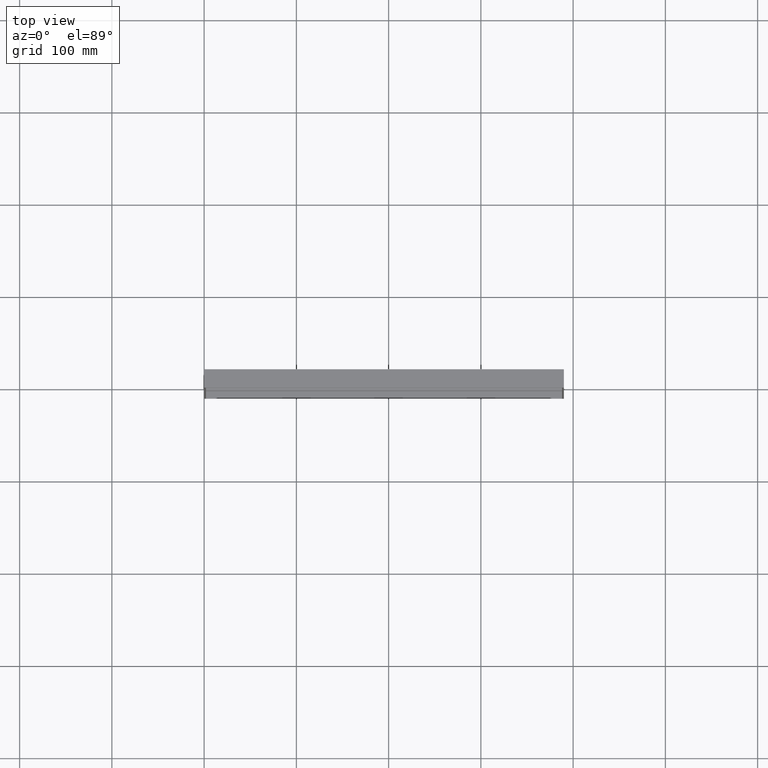
[diagram: clean part render]
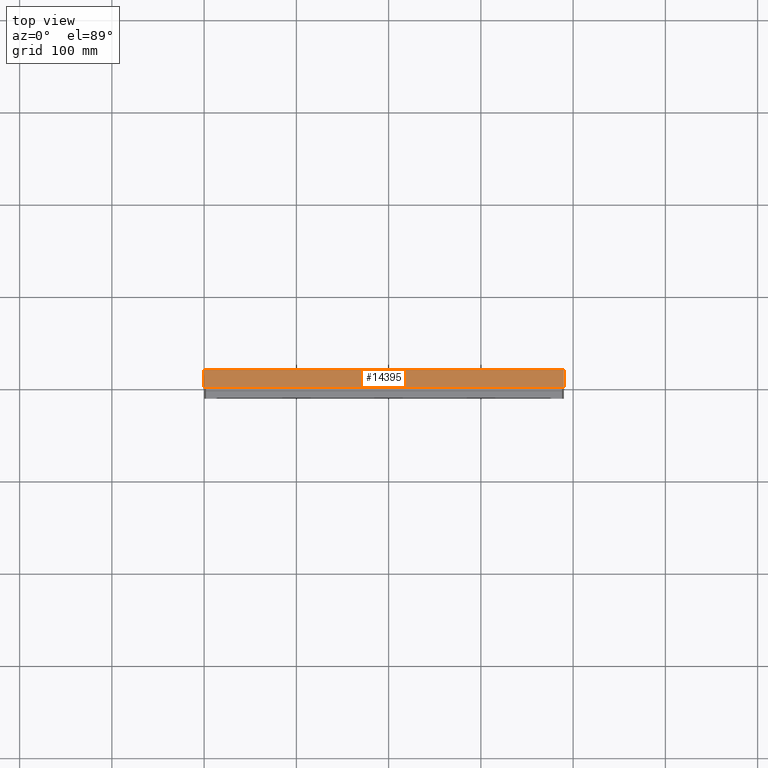
[diagram: same view with one face highlighted and labeled with its STEP entity id]
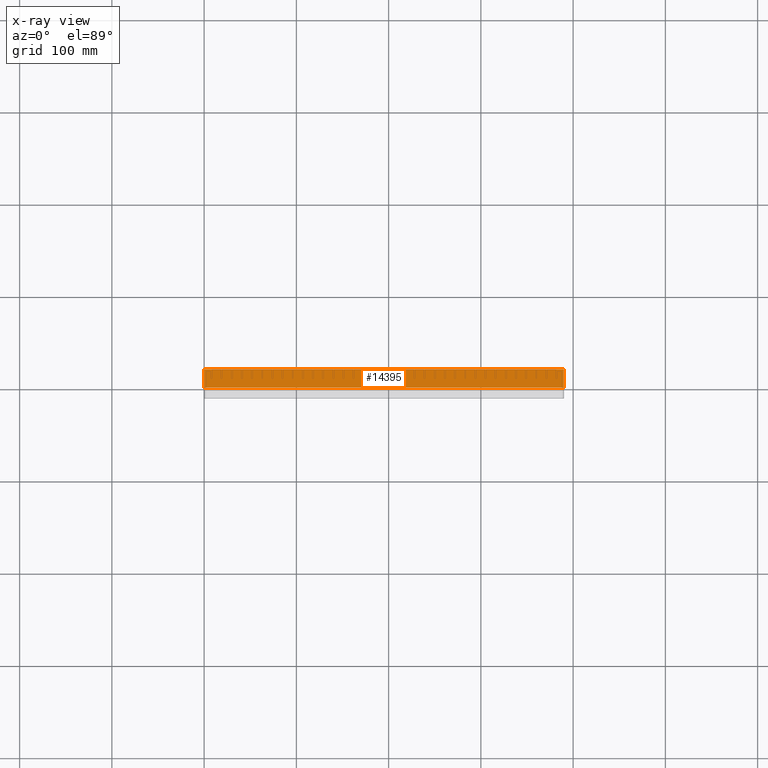
[diagram: x-ray of the same camera — body ghosted, the highlighted face saturated]
A machine part, top view. The second image highlights one B-rep face of the part: STEP entity #14395.
The next image is the same camera in x-ray: the body ghosted, the highlighted face saturated — about 0% of this face is hidden behind the body in this view.
In plain terms, the highlighted planar face has unit normal (-0, 0, -1).
Its self-contained STEP definition (entity closure, byte-faithful):
#1 = VECTOR ( 'NONE', #48534, 1000.000000000000000 ) ;
#3780 = VERTEX_POINT ( 'NONE', #104944 ) ;
#5384 = CARTESIAN_POINT ( 'NONE',  ( 390.0000000000000600, 9.999999999999682000, 1.110223024625156500E-013 ) ) ;
#5880 = CARTESIAN_POINT ( 'NONE',  ( 390.0000000000000600, 9.999999999999682000, 1.110223024625156500E-013 ) ) ;
#6497 = ORIENTED_EDGE ( 'NONE', *, *, #93432, .T. ) ;
#10431 = CARTESIAN_POINT ( 'NONE',  ( 1.530808498934191500E-015, -10.00000000000000000, -5.551115123125782700E-014 ) ) ;
#14395 = ADVANCED_FACE ( 'NONE', ( #70512 ), #103412, .F. ) ;
#21930 = EDGE_CURVE ( 'NONE', #87397, #89785, #54154, .T. ) ;
#22274 = EDGE_LOOP ( 'NONE', ( #6497, #69578, #78449, #96270 ) ) ;
#22692 = DIRECTION ( 'NONE',  ( 0.0000000000000000000, 1.000000000000000000, 3.061616997868382600E-016 ) ) ;
#25109 = VERTEX_POINT ( 'NONE', #97830 ) ;
#28959 = CARTESIAN_POINT ( 'NONE',  ( 1.530808498934191500E-015, -10.00000000000000000, -5.551115123125782700E-014 ) ) ;
#33127 = AXIS2_PLACEMENT_3D ( 'NONE', #5384, #54216, #22692 ) ;
#33798 = EDGE_CURVE ( 'NONE', #3780, #87397, #58778, .T. ) ;
#38856 = EDGE_CURVE ( 'NONE', #89785, #25109, #101526, .T. ) ;
#43368 = CARTESIAN_POINT ( 'NONE',  ( -1.020538999289461500E-015, 3.333333333333336600, 0.0000000000000000000 ) ) ;
#44066 = CARTESIAN_POINT ( 'NONE',  ( 1.020538999289460400E-015, -3.333333333333331300, 0.0000000000000000000 ) ) ;
#48534 = DIRECTION ( 'NONE',  ( -1.000000000000000000, 0.0000000000000000000, 3.140119997813727100E-017 ) ) ;
#49974 = VECTOR ( 'NONE', #79828, 1000.000000000000000 ) ;
#54154 = LINE ( 'NONE', #83727, #93401 ) ;
#54216 = DIRECTION ( 'NONE',  ( -3.140119997813727100E-017, 3.061616997868382600E-016, -1.000000000000000000 ) ) ;
#56297 = CARTESIAN_POINT ( 'NONE',  ( 390.0000000000001100, 10.00000000000000200, 8.326672684688674100E-014 ) ) ;
#58181 = LINE ( 'NONE', #56297, #1 ) ;
#58778 = LINE ( 'NONE', #5880, #49974 ) ;
#63818 = CARTESIAN_POINT ( 'NONE',  ( 390.0000000000000000, -10.00000000000000000, -5.551115123125782700E-014 ) ) ;
#69578 = ORIENTED_EDGE ( 'NONE', *, *, #38856, .F. ) ;
#70512 = FACE_OUTER_BOUND ( 'NONE', #22274, .T. ) ;
#78449 = ORIENTED_EDGE ( 'NONE', *, *, #21930, .F. ) ;
#79828 = DIRECTION ( 'NONE',  ( -3.061616997868383600E-016, -1.000000000000000000, -3.061616997868382600E-016 ) ) ;
#82651 = DIRECTION ( 'NONE',  ( -1.000000000000000000, 0.0000000000000000000, 3.140119997813727100E-017 ) ) ;
#83727 = CARTESIAN_POINT ( 'NONE',  ( 390.0000000000000000, -10.00000000000000000, -5.551115123125782700E-014 ) ) ;
#84086 = CARTESIAN_POINT ( 'NONE',  ( -1.110223024625157800E-013, 10.00000000000000200, 1.232687704539892700E-013 ) ) ;
#87397 = VERTEX_POINT ( 'NONE', #63818 ) ;
#89785 = VERTEX_POINT ( 'NONE', #28959 ) ;
#93401 = VECTOR ( 'NONE', #82651, 1000.000000000000000 ) ;
#93432 = EDGE_CURVE ( 'NONE', #3780, #25109, #58181, .T. ) ;
#96270 = ORIENTED_EDGE ( 'NONE', *, *, #33798, .F. ) ;
#97830 = CARTESIAN_POINT ( 'NONE',  ( -1.110223024625157800E-013, 10.00000000000000200, 1.232687704539892700E-013 ) ) ;
#101526 = B_SPLINE_CURVE_WITH_KNOTS ( 'NONE', 3,
 ( #10431, #44066, #43368, #84086 ),
 .UNSPECIFIED., .F., .F.,
 ( 4, 4 ),
 ( 0.0000000000000000000, 1.000000000000000000 ),
 .UNSPECIFIED. ) ;
#103412 = PLANE ( 'NONE',  #33127 ) ;
#104944 = CARTESIAN_POINT ( 'NONE',  ( 390.0000000000001100, 10.00000000000000200, 8.326672684688674100E-014 ) ) ;